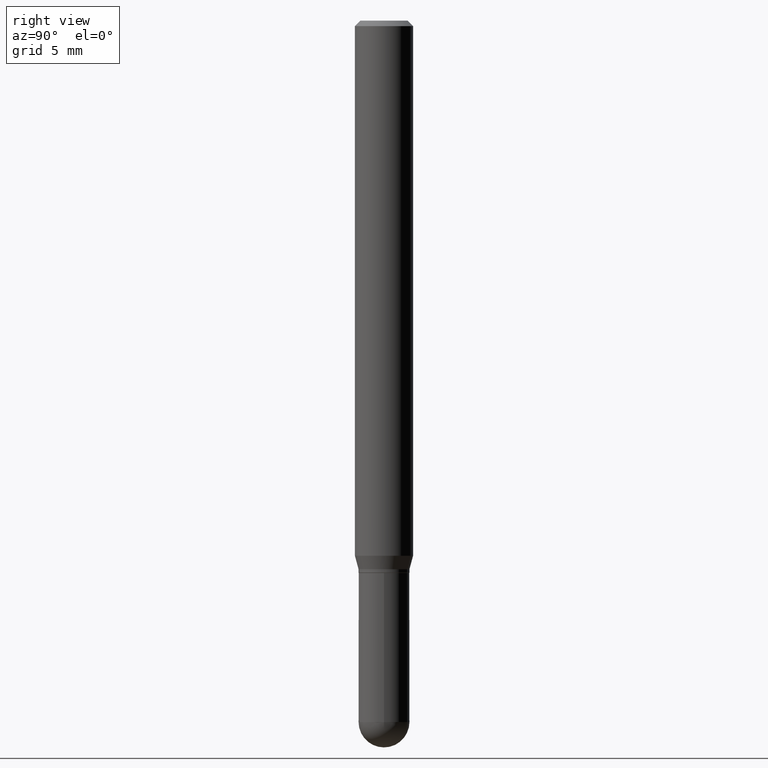
[diagram: clean part render]
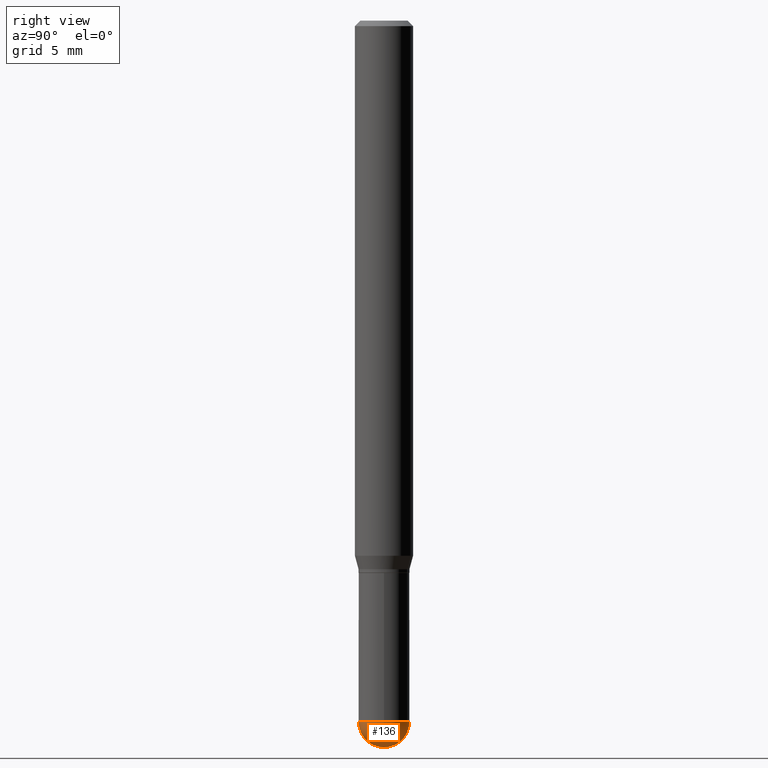
[diagram: same view with one face highlighted and labeled with its STEP entity id]
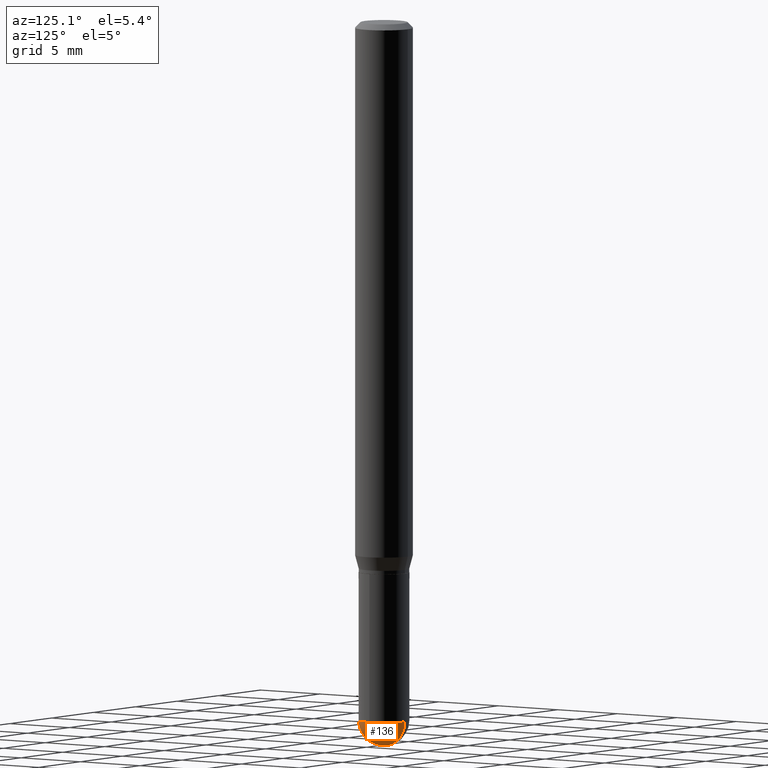
[diagram: same view with one face highlighted and labeled with its STEP entity id]
A machine part, right view. The second image highlights one B-rep face of the part: STEP entity #136.
A second angle (auxiliary view) of the same face is appended — the face is thin or edge-on in the first view.
In plain terms, the highlighted spherical surface has radius 1.7501 mm.
Its self-contained STEP definition (entity closure, byte-faithful):
#7 = CARTESIAN_POINT ( 'NONE',  ( 4.645412544229285965E-29, -6.632417951266439838E-15, -1.899600000000000177 ) ) ;
#29 = VERTEX_POINT ( 'NONE', #381 ) ;
#50 = FACE_OUTER_BOUND ( 'NONE', #140, .T. ) ;
#86 = DIRECTION ( 'NONE',  ( -2.445468806185136597E-29, 3.491481338843145583E-15, 1.000000000000000000 ) ) ;
#94 = CARTESIAN_POINT ( 'NONE',  ( 4.851357352610053575E-29, -6.819347608944073688E-15, -1.968500000000000139 ) ) ;
#106 = EDGE_CURVE ( 'NONE', #459, #29, #375, .T. ) ;
#114 = VERTEX_POINT ( 'NONE', #154 ) ;
#117 = AXIS2_PLACEMENT_3D ( 'NONE', #125, #278, #120 ) ;
#118 = CARTESIAN_POINT ( 'NONE',  ( 0.06890000000000008618, -6.409137719647418882E-15, -1.899600000000000177 ) ) ;
#120 = DIRECTION ( 'NONE',  ( 6.982962677686265922E-15, 1.000000000000000000, -3.964946289788482474E-15 ) ) ;
#125 = CARTESIAN_POINT ( 'NONE',  ( 4.679918503997674770E-29, -6.583003452920844326E-15, -1.899600000000000177 ) ) ;
#136 = ADVANCED_FACE ( 'NONE', ( #50 ), #285, .T. ) ;
#140 = EDGE_LOOP ( 'NONE', ( #445, #226, #455, #310 ) ) ;
#154 = CARTESIAN_POINT ( 'NONE',  ( 4.811261284926304785E-16, 0.06889999999999341096, -1.899600000000000399 ) ) ;
#158 = DIRECTION ( 'NONE',  ( -2.445468806185136597E-29, 3.491481338843145583E-15, 1.000000000000000000 ) ) ;
#159 = DIRECTION ( 'NONE',  ( 1.000000000000000000, -6.982962677686273021E-15, 0.000000000000000000 ) ) ;
#164 = EDGE_CURVE ( 'NONE', #29, #167, #218, .T. ) ;
#167 = VERTEX_POINT ( 'NONE', #118 ) ;
#186 = AXIS2_PLACEMENT_3D ( 'NONE', #392, #158, #283 ) ;
#213 = DIRECTION ( 'NONE',  ( 6.982962677686265922E-15, 1.000000000000000000, 0.000000000000000000 ) ) ;
#218 = CIRCLE ( 'NONE', #263, 0.06890000000000007230 ) ;
#226 = ORIENTED_EDGE ( 'NONE', *, *, #237, .T. ) ;
#232 = DIRECTION ( 'NONE',  ( -1.000000000000000000, 7.105427357601001070E-15, -4.926315508542082329E-29 ) ) ;
#237 = EDGE_CURVE ( 'NONE', #459, #114, #483, .T. ) ;
#244 = AXIS2_PLACEMENT_3D ( 'NONE', #431, #232, #434 ) ;
#254 = AXIS2_PLACEMENT_3D ( 'NONE', #261, #413, #213 ) ;
#261 = CARTESIAN_POINT ( 'NONE',  ( 4.679918503997674770E-29, -6.583003452920844326E-15, -1.899600000000000177 ) ) ;
#263 = AXIS2_PLACEMENT_3D ( 'NONE', #7, #86, #159 ) ;
#278 = DIRECTION ( 'NONE',  ( -1.000000000000000000, 6.982962677686265922E-15, -4.883557194083112901E-29 ) ) ;
#283 = DIRECTION ( 'NONE',  ( 1.000000000000000000, -6.982962677686273021E-15, 0.000000000000000000 ) ) ;
#285 = SPHERICAL_SURFACE ( 'NONE', #117, 0.06889999999999996128 ) ;
#310 = ORIENTED_EDGE ( 'NONE', *, *, #164, .F. ) ;
#322 = CIRCLE ( 'NONE', #186, 0.06890000000000007230 ) ;
#375 = CIRCLE ( 'NONE', #244, 0.06889999999999996128 ) ;
#381 = CARTESIAN_POINT ( 'NONE',  ( -4.895639449386624073E-16, -0.06890000000000662261, -1.899599999999999955 ) ) ;
#392 = CARTESIAN_POINT ( 'NONE',  ( 4.645412544229285965E-29, -6.632417951266439838E-15, -1.899600000000000177 ) ) ;
#394 = EDGE_CURVE ( 'NONE', #167, #114, #322, .T. ) ;
#413 = DIRECTION ( 'NONE',  ( 1.000000000000000000, -6.982962677686265922E-15, 4.883557194083112340E-29 ) ) ;
#431 = CARTESIAN_POINT ( 'NONE',  ( 4.679918503997674770E-29, -6.583003452920844326E-15, -1.899600000000000177 ) ) ;
#434 = DIRECTION ( 'NONE',  ( -7.105427357601001859E-15, -1.000000000000000000, 0.000000000000000000 ) ) ;
#445 = ORIENTED_EDGE ( 'NONE', *, *, #106, .F. ) ;
#455 = ORIENTED_EDGE ( 'NONE', *, *, #394, .F. ) ;
#459 = VERTEX_POINT ( 'NONE', #94 ) ;
#483 = CIRCLE ( 'NONE', #254, 0.06889999999999996128 ) ;